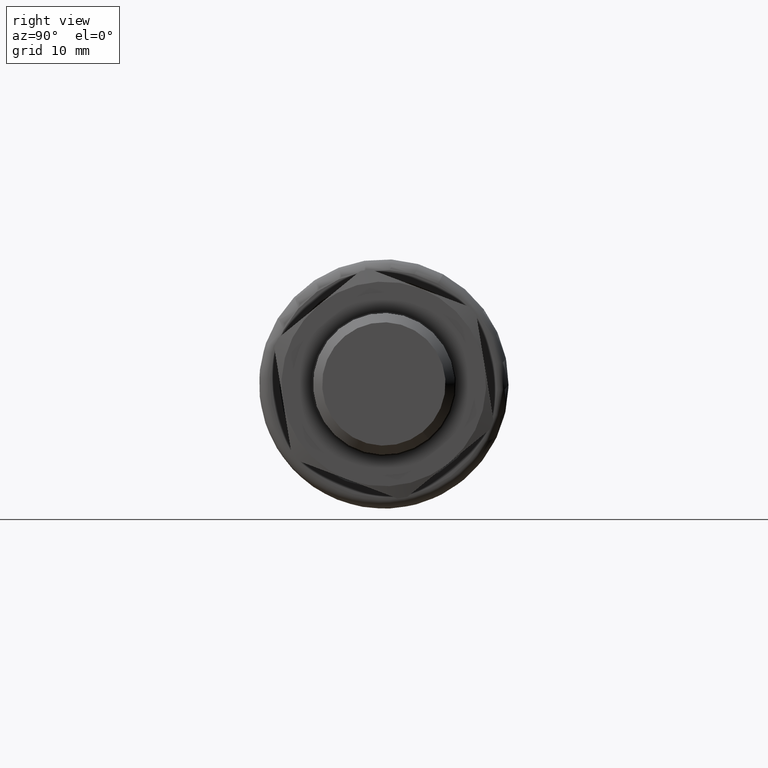
[diagram: clean part render]
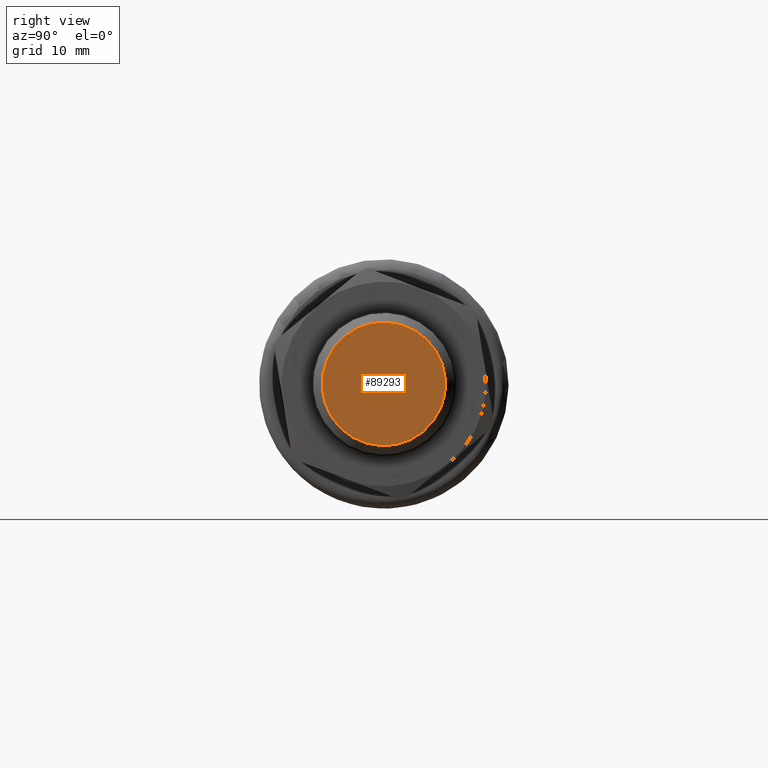
[diagram: same view with one face highlighted and labeled with its STEP entity id]
A machine part, right view. The second image highlights one B-rep face of the part: STEP entity #89293.
In plain terms, the highlighted planar face has unit normal (1, 0, 0).
Its self-contained STEP definition (entity closure, byte-faithful):
#89242=CARTESIAN_POINT('',(59.500000000000014,3.623280490331977,-4.437065554888690));
#89243=VERTEX_POINT('',#89242);
#89244=CARTESIAN_POINT('',(59.500000000000014,0.0,0.0));
#89245=DIRECTION('',(-1.0,0.0,0.0));
#89246=DIRECTION('',(0.0,-0.632500740216807,0.774559754715665));
#89247=AXIS2_PLACEMENT_3D('',#89244,#89245,#89246);
#89248=CIRCLE('',#89247,5.728500000000001);
#89249=EDGE_CURVE('',#89243,#89243,#89248,.T.);
#89285=CARTESIAN_POINT('',(59.500000000000014,3.582642317773047,-4.387300090648209));
#89286=DIRECTION('',(1.0,0.0,0.0));
#89287=DIRECTION('',(0.0,-0.774559754715665,-0.632500740216807));
#89288=AXIS2_PLACEMENT_3D('',#89285,#89286,#89287);
#89289=PLANE('',#89288);
#89290=ORIENTED_EDGE('',*,*,#89249,.F.);
#89291=EDGE_LOOP('',(#89290));
#89292=FACE_OUTER_BOUND('',#89291,.T.);
#89293=ADVANCED_FACE('',(#89292),#89289,.T.);